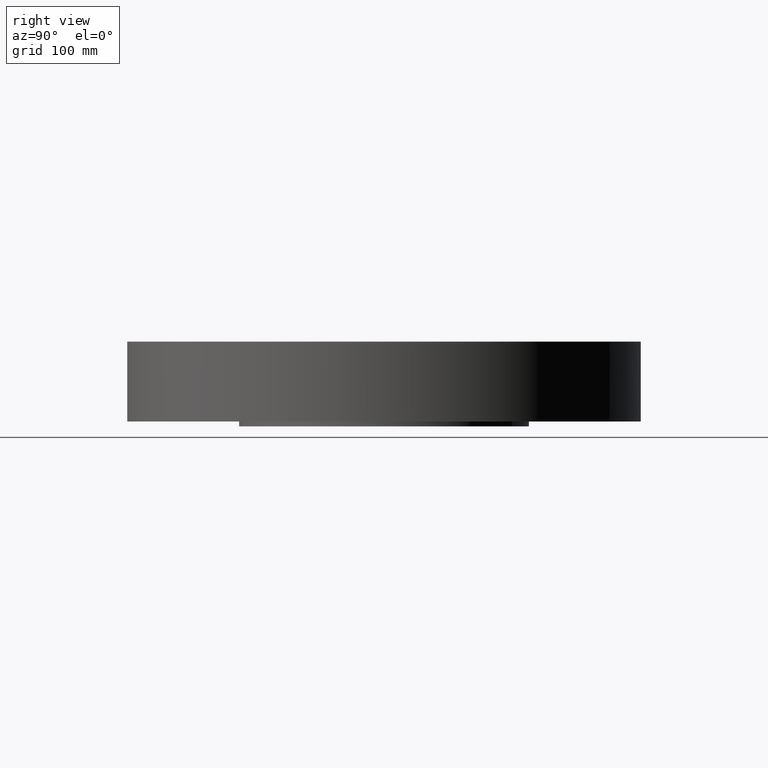
[diagram: clean part render]
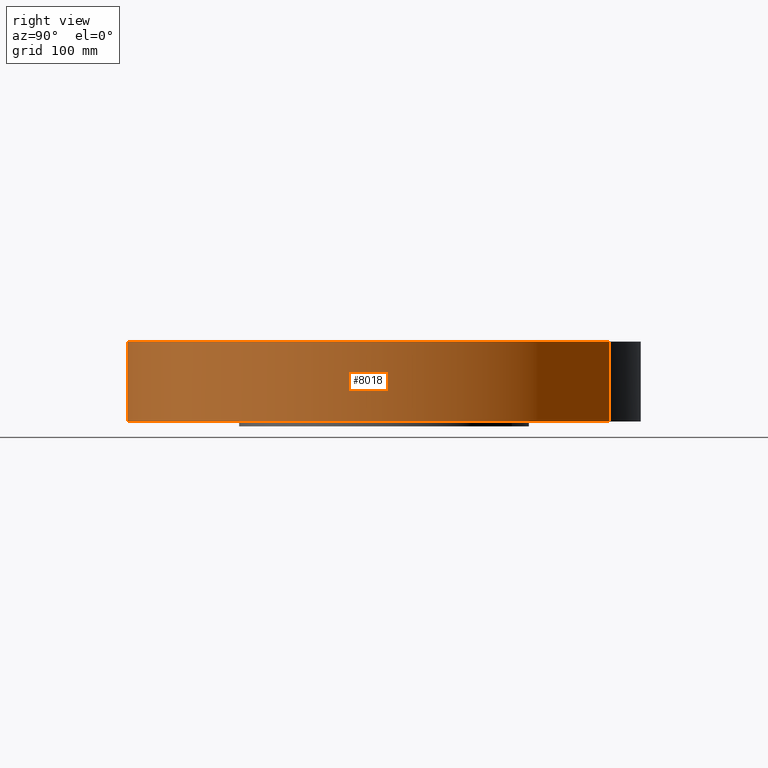
[diagram: same view with one face highlighted and labeled with its STEP entity id]
A machine part, right view. The second image highlights one B-rep face of the part: STEP entity #8018.
In plain terms, the highlighted cylindrical surface (partial cylindrical patch) has radius 336.55 mm, axis along (0, 0, -1).
Its self-contained STEP definition (entity closure, byte-faithful):
#7223=AXIS2_PLACEMENT_3D('Circle Axis2P3D',#7221,#7222,$) ;
#7979=AXIS2_PLACEMENT_3D('Cylinder Axis2P3D',#7976,#7977,#7978) ;
#8009=AXIS2_PLACEMENT_3D('Circle Axis2P3D',#8007,#8008,$) ;
#7216=CARTESIAN_POINT('Vertex',(-6.35238838653,-11.6279689451,-4.41991150591E-014)) ;
#7218=CARTESIAN_POINT('Vertex',(6.35238838653,11.6279689451,-4.41991150591E-014)) ;
#7221=CARTESIAN_POINT('Axis2P3D Location',(0.,0.,0.)) ;
#7976=CARTESIAN_POINT('Axis2P3D Location',(0.,0.,1.93500000001)) ;
#7981=CARTESIAN_POINT('Line Origine',(-6.35238838653,-11.6279689451,2.06000000001)) ;
#7985=CARTESIAN_POINT('Vertex',(-6.35238838653,-11.6279689451,4.12000000002)) ;
#7992=CARTESIAN_POINT('Vertex',(6.35238838653,11.6279689451,4.12000000002)) ;
#7995=CARTESIAN_POINT('Line Origine',(6.35238838653,11.6279689451,2.06000000001)) ;
#8007=CARTESIAN_POINT('Axis2P3D Location',(0.,0.,4.12000000002)) ;
#7222=DIRECTION('Axis2P3D Direction',(0.,0.,-0.0393700787402)) ;
#7977=DIRECTION('Axis2P3D Direction',(0.,0.,-0.0393700787402)) ;
#7978=DIRECTION('Axis2P3D XDirection',(0.0188750212049,0.0345504945626,0.)) ;
#7982=DIRECTION('Vector Direction',(0.,0.,-0.0393700787402)) ;
#7996=DIRECTION('Vector Direction',(0.,0.,-0.0393700787402)) ;
#8008=DIRECTION('Axis2P3D Direction',(0.,0.,-0.0393700787402)) ;
#7983=VECTOR('Line Direction',#7982,0.0393700787402) ;
#7997=VECTOR('Line Direction',#7996,0.0393700787402) ;
#8013=ORIENTED_EDGE('',*,*,#7225,.F.) ;
#8014=ORIENTED_EDGE('',*,*,#7999,.T.) ;
#8015=ORIENTED_EDGE('',*,*,#8011,.T.) ;
#8016=ORIENTED_EDGE('',*,*,#7987,.F.) ;
#8018=ADVANCED_FACE('PartBody',(#8017),#7980,.T.) ;
#7224=CIRCLE('generated circle',#7223,13.2500000001) ;
#8010=CIRCLE('generated circle',#8009,13.2500000001) ;
#7980=CYLINDRICAL_SURFACE('generated cylinder',#7979,13.2500000001) ;
#7225=EDGE_CURVE('',#7219,#7217,#7224,.T.) ;
#7987=EDGE_CURVE('',#7217,#7986,#7984,.F.) ;
#7999=EDGE_CURVE('',#7219,#7993,#7998,.F.) ;
#8011=EDGE_CURVE('',#7993,#7986,#8010,.T.) ;
#8012=EDGE_LOOP('',(#8013,#8014,#8015,#8016)) ;
#8017=FACE_OUTER_BOUND('',#8012,.T.) ;
#7984=LINE('Line',#7981,#7983) ;
#7998=LINE('Line',#7995,#7997) ;
#7217=VERTEX_POINT('',#7216) ;
#7219=VERTEX_POINT('',#7218) ;
#7986=VERTEX_POINT('',#7985) ;
#7993=VERTEX_POINT('',#7992) ;